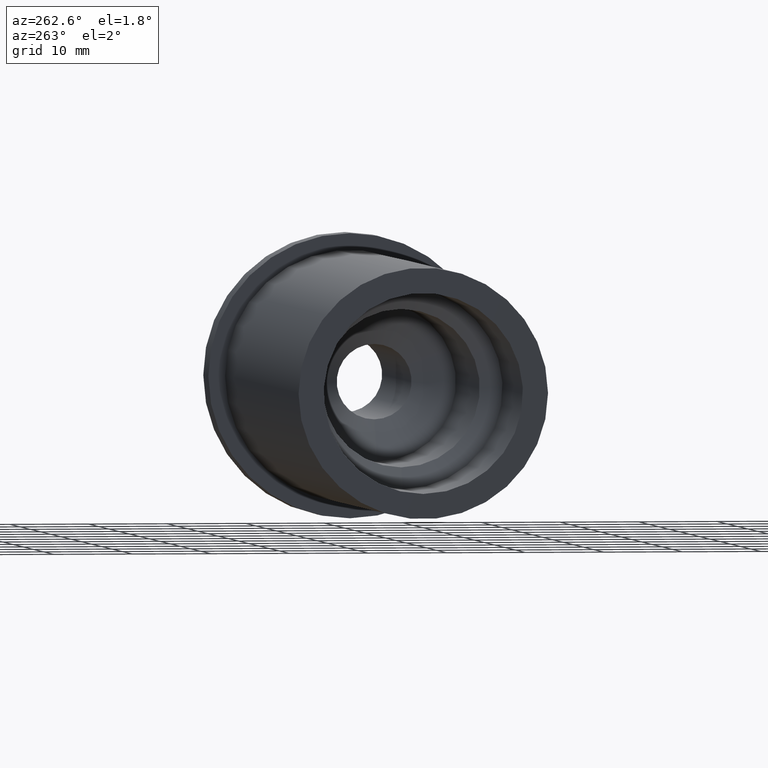
[diagram: clean part render]
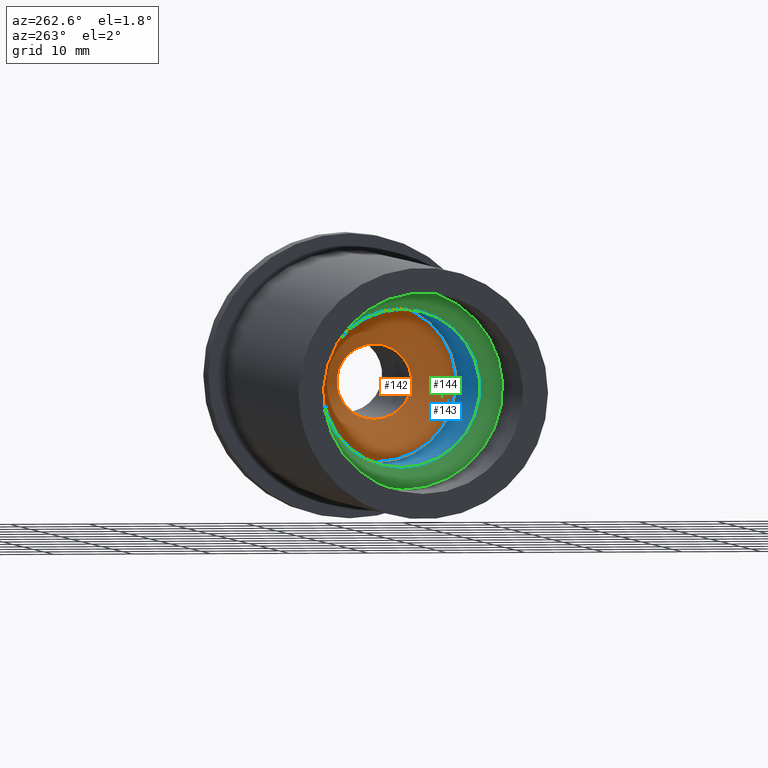
[diagram: same view with three faces highlighted in distinct colors, each labeled with its STEP entity id]
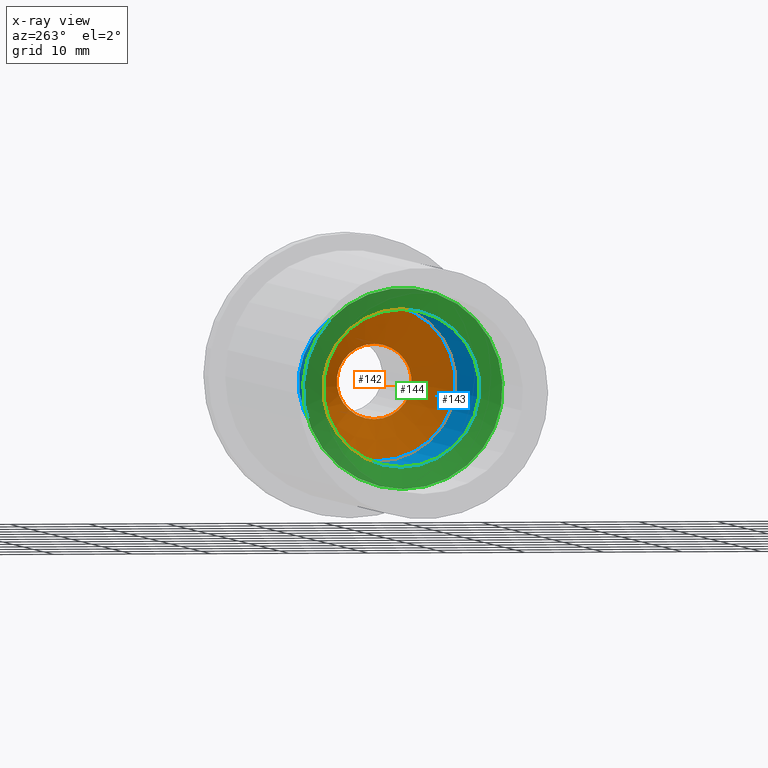
[diagram: x-ray of the same camera — body ghosted, the three highlighted faces saturated]
A machine part, auxiliary view with three faces highlighted in distinct colors.
The next image is the same camera in x-ray (body ghosted, the three faces saturated) — at least one of them is partly hidden behind the body in this view.
Their STEP definitions:

[orange] entity #142 — the highlighted conical surface has half-angle 59 deg.
#21=CONICAL_SURFACE('',#178,5.,1.02974425867665);
#24=FACE_OUTER_BOUND('',#34,.T.);
#34=EDGE_LOOP('',(#105,#106,#107,#108,#109));
#47=LINE('',#258,#54);
#54=VECTOR('',#210,5.);
#61=CIRCLE('',#176,4.7625);
#62=CIRCLE('',#177,4.7625);
#63=CIRCLE('',#179,10.);
#72=VERTEX_POINT('',#250);
#73=VERTEX_POINT('',#252);
#74=VERTEX_POINT('',#256);
#84=EDGE_CURVE('',#73,#72,#61,.T.);
#85=EDGE_CURVE('',#72,#73,#62,.T.);
#86=EDGE_CURVE('',#74,#74,#63,.T.);
#87=EDGE_CURVE('',#74,#73,#47,.T.);
#105=ORIENTED_EDGE('',*,*,#86,.T.);
#106=ORIENTED_EDGE('',*,*,#87,.T.);
#107=ORIENTED_EDGE('',*,*,#84,.T.);
#108=ORIENTED_EDGE('',*,*,#85,.T.);
#109=ORIENTED_EDGE('',*,*,#87,.F.);
#142=ADVANCED_FACE('',(#24),#21,.F.);
#176=AXIS2_PLACEMENT_3D('',#253,#202,#203);
#177=AXIS2_PLACEMENT_3D('',#254,#204,#205);
#178=AXIS2_PLACEMENT_3D('',#255,#206,#207);
#179=AXIS2_PLACEMENT_3D('',#257,#208,#209);
#202=DIRECTION('center_axis',(1.,0.,0.));
#203=DIRECTION('ref_axis',(0.,0.,-1.));
#204=DIRECTION('center_axis',(1.,0.,0.));
#205=DIRECTION('ref_axis',(0.,0.,-1.));
#206=DIRECTION('center_axis',(-1.,0.,0.));
#207=DIRECTION('ref_axis',(0.,0.,1.));
#208=DIRECTION('center_axis',(-1.,0.,0.));
#209=DIRECTION('ref_axis',(0.,0.,1.));
#210=DIRECTION('',(0.515038074910054,1.04972719113862E-16,0.857167300702112));
#250=CARTESIAN_POINT('',(-28.8529925078431,-5.83238038093927E-16,4.7625));
#252=CARTESIAN_POINT('',(-28.8529925078431,-5.83238038093927E-16,-4.7625));
#253=CARTESIAN_POINT('Origin',(-28.8529925078431,0.,0.));
#254=CARTESIAN_POINT('Origin',(-28.8529925078431,0.,0.));
#255=CARTESIAN_POINT('Origin',(-28.9956969048622,0.,0.));
#256=CARTESIAN_POINT('',(-32.,-1.22464679914735E-15,-10.));
#257=CARTESIAN_POINT('Origin',(-32.,0.,0.));
#258=CARTESIAN_POINT('',(-28.9956969048622,-6.12323399573677E-16,-5.));

[blue] entity #143 — the highlighted cylindrical surface (bore or boss wall) has radius 10 mm, axis along (-1, 0, 0).
#25=FACE_OUTER_BOUND('',#35,.T.);
#35=EDGE_LOOP('',(#110,#111,#112,#113));
#48=LINE('',#262,#55);
#55=VECTOR('',#215,10.);
#63=CIRCLE('',#179,10.);
#64=CIRCLE('',#181,10.);
#74=VERTEX_POINT('',#256);
#75=VERTEX_POINT('',#260);
#86=EDGE_CURVE('',#74,#74,#63,.T.);
#88=EDGE_CURVE('',#75,#75,#64,.T.);
#89=EDGE_CURVE('',#75,#74,#48,.T.);
#110=ORIENTED_EDGE('',*,*,#88,.F.);
#111=ORIENTED_EDGE('',*,*,#89,.T.);
#112=ORIENTED_EDGE('',*,*,#86,.F.);
#113=ORIENTED_EDGE('',*,*,#89,.F.);
#137=CYLINDRICAL_SURFACE('',#180,10.);
#143=ADVANCED_FACE('',(#25),#137,.F.);
#179=AXIS2_PLACEMENT_3D('',#257,#208,#209);
#180=AXIS2_PLACEMENT_3D('',#259,#211,#212);
#181=AXIS2_PLACEMENT_3D('',#261,#213,#214);
#208=DIRECTION('center_axis',(-1.,0.,0.));
#209=DIRECTION('ref_axis',(0.,0.,1.));
#211=DIRECTION('center_axis',(-1.,0.,0.));
#212=DIRECTION('ref_axis',(0.,0.,1.));
#213=DIRECTION('center_axis',(1.,0.,0.));
#214=DIRECTION('ref_axis',(0.,0.,1.));
#215=DIRECTION('',(1.,0.,0.));
#256=CARTESIAN_POINT('',(-32.,-1.22464679914735E-15,-10.));
#257=CARTESIAN_POINT('Origin',(-32.,0.,0.));
#259=CARTESIAN_POINT('Origin',(-54.5,0.,0.));
#260=CARTESIAN_POINT('',(-55.3848259691314,1.22464679914735E-15,-10.));
#261=CARTESIAN_POINT('Origin',(-55.3848259691314,0.,0.));
#262=CARTESIAN_POINT('',(-54.5,-1.22464679914735E-15,-10.));

[green] entity #144 — the highlighted conical surface has half-angle 59 deg.
#22=CONICAL_SURFACE('',#182,6.3440505,1.02974425867665);
#26=FACE_OUTER_BOUND('',#36,.T.);
#36=EDGE_LOOP('',(#114,#115,#116,#117));
#49=LINE('',#266,#56);
#56=VECTOR('',#220,6.3440505);
#64=CIRCLE('',#181,10.);
#65=CIRCLE('',#183,12.688101);
#75=VERTEX_POINT('',#260);
#76=VERTEX_POINT('',#264);
#88=EDGE_CURVE('',#75,#75,#64,.T.);
#90=EDGE_CURVE('',#76,#76,#65,.T.);
#91=EDGE_CURVE('',#76,#75,#49,.T.);
#114=ORIENTED_EDGE('',*,*,#90,.T.);
#115=ORIENTED_EDGE('',*,*,#91,.T.);
#116=ORIENTED_EDGE('',*,*,#88,.T.);
#117=ORIENTED_EDGE('',*,*,#91,.F.);
#144=ADVANCED_FACE('',(#26),#22,.F.);
#181=AXIS2_PLACEMENT_3D('',#261,#213,#214);
#182=AXIS2_PLACEMENT_3D('',#263,#216,#217);
#183=AXIS2_PLACEMENT_3D('',#265,#218,#219);
#213=DIRECTION('center_axis',(1.,0.,0.));
#214=DIRECTION('ref_axis',(0.,0.,1.));
#216=DIRECTION('center_axis',(-1.,0.,0.));
#217=DIRECTION('ref_axis',(0.,0.,1.));
#218=DIRECTION('center_axis',(-1.,0.,0.));
#219=DIRECTION('ref_axis',(0.,0.,1.));
#220=DIRECTION('',(0.515038074910054,1.04972719113862E-16,0.857167300702112));
#260=CARTESIAN_POINT('',(-55.3848259691314,1.22464679914735E-15,-10.));
#261=CARTESIAN_POINT('Origin',(-55.3848259691314,0.,0.));
#263=CARTESIAN_POINT('Origin',(-53.1881098894279,0.,0.));
#264=CARTESIAN_POINT('',(-57.,-1.55384422769083E-15,-12.688101));
#265=CARTESIAN_POINT('Origin',(-57.,0.,0.));
#266=CARTESIAN_POINT('',(-53.1881098894279,-7.76922113845417E-16,-6.3440505));